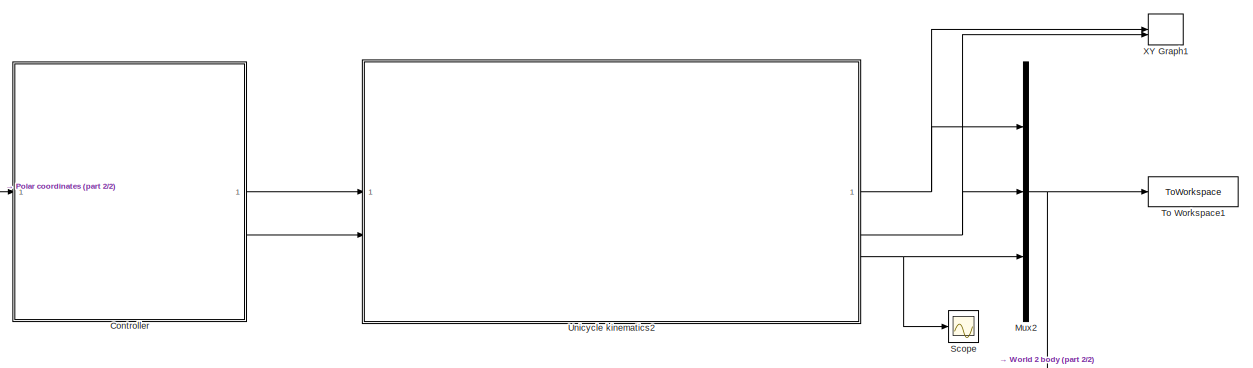
[diagram: root canvas - part 1/2, middle right region]
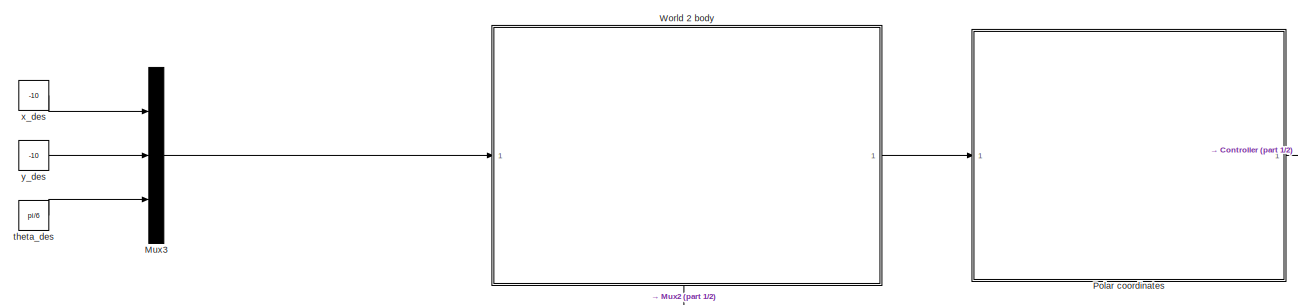
[diagram: root canvas - part 2/2, middle left region]
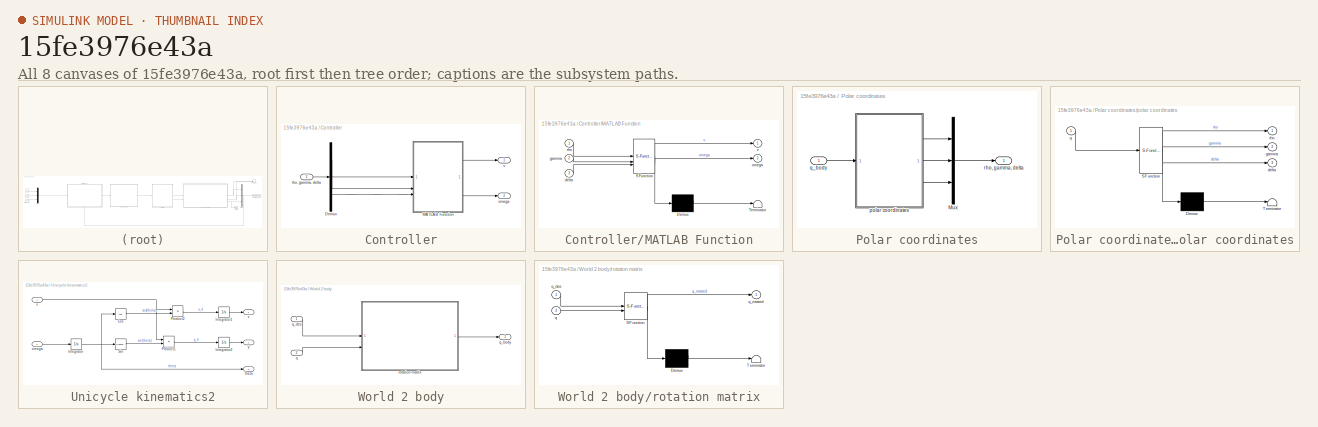
[diagram: thumbnail index - all 8 canvases of the model, root first then tree order]
MODEL slx_15fe3976e43a
KIND model
CONFIG AbsTol = auto
CONFIG EnableMultiTasking = off
CONFIG FixedStep = 1e-3
CONFIG MaxStep = auto
CONFIG MinStep = auto
CONFIG RelTol = 1e-3
CONFIG SampleTimeConstraint = Unconstrained
CONFIG SolverName = ode5
CONFIG StartTime = 0.0
CONFIG StopTime = 15
BLOCK [SubSystem] Controller
BLOCK [Demux] Controller/Demux
  Outputs = 3
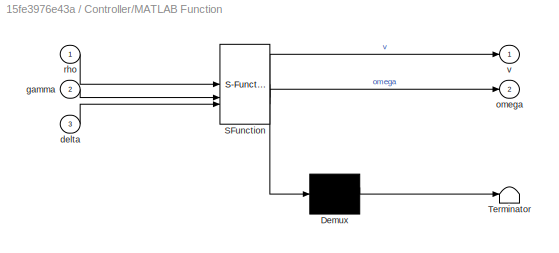
BLOCK [SubSystem] Controller/MATLAB Function
  ErrorFcn = Stateflow.Translate.translate
  PermitHierarchicalResolution = ExplicitOnly
  SFBlockType = MATLAB Function
  TreatAsAtomicUnit = on
BLOCK [Demux] Controller/MATLAB Function/ Demux 
  Outputs = 1
BLOCK [S-Function] Controller/MATLAB Function/ SFunction 
  EnableBusSupport = off
  FunctionName = sf_sfun
  PortCounts = [3 3]
  SFcnIsStateOwnerBlock = off
  SFunctionDeploymentMode = off
  Tag = Stateflow S-Function 3
BLOCK [Terminator] Controller/MATLAB Function/ Terminator 
BLOCK [Inport] Controller/MATLAB Function/delta
  Port = 3
BLOCK [Inport] Controller/MATLAB Function/gamma
  Port = 2
BLOCK [Outport] Controller/MATLAB Function/omega
  Port = 2
BLOCK [Inport] Controller/MATLAB Function/rho
BLOCK [Outport] Controller/MATLAB Function/v
BLOCK [Outport] Controller/omega
  Port = 2
BLOCK [Inport] Controller/rho, gamma, delta
BLOCK [Outport] Controller/v
BLOCK [Mux] Mux2
  DisplayOption = bar
  Inputs = 3
BLOCK [Mux] Mux3
  DisplayOption = bar
  Inputs = 3
BLOCK [SubSystem] Polar coordinates
BLOCK [Mux] Polar coordinates/Mux
  DisplayOption = bar
  Inputs = 3
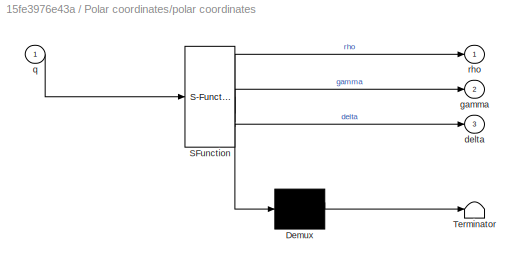
BLOCK [SubSystem] Polar coordinates/polar coordinates
  ErrorFcn = Stateflow.Translate.translate
  PermitHierarchicalResolution = ExplicitOnly
  SFBlockType = MATLAB Function
  TreatAsAtomicUnit = on
BLOCK [Demux] Polar coordinates/polar coordinates/ Demux 
  Outputs = 1
BLOCK [S-Function] Polar coordinates/polar coordinates/ SFunction 
  EnableBusSupport = off
  FunctionName = sf_sfun
  PortCounts = [1 4]
  SFcnIsStateOwnerBlock = off
  SFunctionDeploymentMode = off
  Tag = Stateflow S-Function 2
BLOCK [Terminator] Polar coordinates/polar coordinates/ Terminator 
BLOCK [Outport] Polar coordinates/polar coordinates/delta
  Port = 3
BLOCK [Outport] Polar coordinates/polar coordinates/gamma
  Port = 2
BLOCK [Inport] Polar coordinates/polar coordinates/q
BLOCK [Outport] Polar coordinates/polar coordinates/rho
BLOCK [Inport] Polar coordinates/q_body
BLOCK [Outport] Polar coordinates/rho, gamma, delta
BLOCK [Scope] Scope
  ActiveDisplayYMaximum = 1.2956769953230405
  ActiveDisplayYMinimum = -3.6435767001594175
  Floating = off
  GraphicalSettings = {"Style":{"BackgroundColor":[0.12941176470588237,0.12941176470588237,0.12941176470588237],"AxesColor":[0.07058823529411765,0.07058823529411765,0.07058823529411765],"LabelsColor":[0.8509803921568627,0.8509803921568627,0.8509803921568627],"PreserveColors":false,"Visible":[true],"LineStyle":["-"],"LineWidth":[1.5],"BarWidth":[0.9],"LineColor":["auto"],"LineFaceAlpha":[1],"LineEdgeAlpha":[1],"Marker":...<+2037ch>
  MultipleDisplayCache = [{"MaxYLimMag":3.6435767001594175,"MaxYLimReal":1.2956769953230405,"MinYLimMag":0,"MinYLimReal":-3.6435767001594175,"PlotAsMagnitudePhase":false,"ShowGrid":true,"ShowLegend":false,"Title":"%<SignalLabel>","YLabel":""}]
  NumInputPorts = 1
  ScopeFrameLocation = window
  WasSavedAsWebScope = on
  WindowPosition = [1.000000,41.000000,2560.000000,1377.000000,]
BLOCK [ToWorkspace] To Workspace1
  FixptAsFi = on
  MaxDataPoints = inf
  SampleTime = -1
  SaveFormat = Timeseries
  VariableName = sim_pose1
BLOCK [SubSystem] Unicycle kinematics2
BLOCK [Trigonometry] Unicycle kinematics2/Cos
  Operator = cos
BLOCK [Integrator] Unicycle kinematics2/Integrator
BLOCK [Integrator] Unicycle kinematics2/Integrator1
BLOCK [Integrator] Unicycle kinematics2/Integrator2
BLOCK [Product] Unicycle kinematics2/Product1
BLOCK [Product] Unicycle kinematics2/Product2
BLOCK [Trigonometry] Unicycle kinematics2/Sin
BLOCK [Inport] Unicycle kinematics2/omega
  Port = 2
BLOCK [Outport] Unicycle kinematics2/theta
  Port = 3
BLOCK [Inport] Unicycle kinematics2/v
BLOCK [Outport] Unicycle kinematics2/x
BLOCK [Outport] Unicycle kinematics2/y
  Port = 2
BLOCK [SubSystem] World 2 body
  PortSchema = {"entries":[{"content":{"sides":[{"content":{"connectorIds":["In1"]},"type":"ConnectorPlacement.EquallySpacedRectSide","uuid":"d6332ee4-6e37-4568-865c-a04eee2f5a67"},{"content":{"connectorIds":["Out1"],"side":"RIGHT"},"type":"ConnectorPlacement.EquallySpacedRectSide","uuid":"8e88a442-f659-4873-b48a-1ad3acef8f2e"},{"content":{"side":"TOP"},"type":"ConnectorPlacement.EquallySpacedRectSide","uuid":"5...<+371ch>
BLOCK [Inport] World 2 body/q
  Port = 2
BLOCK [Outport] World 2 body/q_body
BLOCK [Inport] World 2 body/q_des
BLOCK [SubSystem] World 2 body/rotation matrix
  ErrorFcn = Stateflow.Translate.translate
  PermitHierarchicalResolution = ExplicitOnly
  SFBlockType = MATLAB Function
  TreatAsAtomicUnit = on
BLOCK [Demux] World 2 body/rotation matrix/ Demux 
  Outputs = 1
BLOCK [S-Function] World 2 body/rotation matrix/ SFunction 
  EnableBusSupport = off
  FunctionName = sf_sfun
  PortCounts = [2 2]
  SFcnIsStateOwnerBlock = off
  SFunctionDeploymentMode = off
  Tag = Stateflow S-Function 1
BLOCK [Terminator] World 2 body/rotation matrix/ Terminator 
BLOCK [Inport] World 2 body/rotation matrix/q
  Port = 2
BLOCK [Inport] World 2 body/rotation matrix/q_des
BLOCK [Outport] World 2 body/rotation matrix/q_rotated
BLOCK [Record] XY Graph1
  CompatibilityTag = XY
  FileSettingsInternal = {"entries":[{"content":{"excelSettings":{"content":{},"type":"Streamout.ExcelSettings"},"parquetSettings":{"content":{},"type":"Streamout.ParquetSettings"}},"type":"Streamout.FileSettingStorage","uuid":""}],"packageUris":["http:\/\/schema.mathworks.com\/mf0\/streamout_blocks\/R2020a"],"version":"1.0"}
  FrameSettings = [0, 0]
  Layout = [1 1]
  NumPorts = 2.0
  SignalsInternal = {"entries":[{"content":{"signals":[{"content":{"blockPath":[],"dimensions":[1],"domain":"","lineColor":"#a2142f","plots":[ 1 ],"port":1,"sid":[""],"signalID":1,"signalName":"Unicycle kinematics2:1"},"type":"RecordBlkView.Signal","uuid":""},{"content":{"blockPath":[],"dimensions":[1],"domain":"","lineColor":"#139fff","plots":[ 1 ],"port":2,"sid":[""],"signalID":2,"signalName":"Unicycle kinematics2:...<+190ch>
  VisualizationBindings = {"xyplotplugin":{"info":[{"series":[{"bindingParametersList":[{"parameter":"X-Axis","signalID":1,"signalName":"Unicycle kinematics2:1"},{"parameter":"Y-Axis","signalID":2,"signalName":"Unicycle kinematics2:2"}],"seriesID":0}],"subplotID":1}]}}
BLOCK [Constant] theta_des
  Value = pi/6
BLOCK [Constant] x_des
  Value = -10
BLOCK [Constant] y_des
  Value = -10
LINE Controller/Demux:1 -> Controller/MATLAB Function:1
LINE Controller/Demux:2 -> Controller/MATLAB Function:2
LINE Controller/Demux:3 -> Controller/MATLAB Function:3
LINE Controller/MATLAB Function:1 -> Controller/v:1
LINE Controller/MATLAB Function:2 -> Controller/omega:1
LINE Controller/rho, gamma, delta:1 -> Controller/Demux:1
LINE Controller:1 -> Unicycle kinematics2:1
LINE Controller:2 -> Unicycle kinematics2:2
NET Mux2:1 -> To Workspace1:1, World 2 body:2
LINE Mux3:1 -> World 2 body:1
LINE Polar coordinates/Mux:1 -> Polar coordinates/rho, gamma, delta:1
LINE Polar coordinates/polar coordinates:1 -> Polar coordinates/Mux:1
LINE Polar coordinates/polar coordinates:2 -> Polar coordinates/Mux:2
LINE Polar coordinates/polar coordinates:3 -> Polar coordinates/Mux:3
LINE Polar coordinates/q_body:1 -> Polar coordinates/polar coordinates:1
LINE Polar coordinates:1 -> Controller:1
LINE Unicycle kinematics2/Cos:1 -> Unicycle kinematics2/Product2:2
LINE Unicycle kinematics2/Integrator1:1 -> Unicycle kinematics2/x:1
LINE Unicycle kinematics2/Integrator2:1 -> Unicycle kinematics2/y:1
NET Unicycle kinematics2/Integrator:1 -> Unicycle kinematics2/Cos:1, Unicycle kinematics2/Sin:1, Unicycle kinematics2/theta:1
LINE Unicycle kinematics2/Product1:1 -> Unicycle kinematics2/Integrator2:1
LINE Unicycle kinematics2/Product2:1 -> Unicycle kinematics2/Integrator1:1
LINE Unicycle kinematics2/Sin:1 -> Unicycle kinematics2/Product1:2
LINE Unicycle kinematics2/omega:1 -> Unicycle kinematics2/Integrator:1
NET Unicycle kinematics2/v:1 -> Unicycle kinematics2/Product1:1, Unicycle kinematics2/Product2:1
NET Unicycle kinematics2:1 -> Mux2:1, XY Graph1:1
NET Unicycle kinematics2:2 -> Mux2:2, XY Graph1:2
NET Unicycle kinematics2:3 -> Mux2:3, Scope:1
LINE World 2 body/q:1 -> World 2 body/rotation matrix:2
LINE World 2 body/q_des:1 -> World 2 body/rotation matrix:1
LINE World 2 body/rotation matrix:1 -> World 2 body/q_body:1
LINE World 2 body:1 -> Polar coordinates:1
LINE theta_des:1 -> Mux3:3
LINE x_des:1 -> Mux3:1
LINE y_des:1 -> Mux3:2
note: NET lines group one-source signal fan-out (src -> all destinations, sorted); 1:1 wires keep LINE
CHART World 2 body/rotation matrix states=1 transitions=1
  STATE_LABEL 'eML_blk_kernel()'
  STATE_LABEL 'SCRIPT:\nfunction q_rotated  = fcn(q_des, q)\n\ntheta_des = q_des(3);\n\n% rotation matrix\nR = [cos(theta_des), sin(theta_des), 0;\n    -sin(theta_des), cos(theta_des), 0; \n    0,              0,              1];\n\n% rotate\ndelta_q = q - q_des;\nq_rotated = R*delta_q;\n'
CHART Polar coordinates/polar coordinates states=1 transitions=1
  STATE_LABEL 'eML_blk_kernel()'
  STATE_LABEL 'SCRIPT:\nfunction [rho, gamma, delta] = fcn(q)\n\n%auxiliary\ndx = q(1);\ndy = q(2);\ndtheta = q(3);\n\n% trasformation in polar coordinates\nrho = sqrt(dx^2+dy^2);\ngamma = atan2(-dy, -dx) - dtheta;\ndelta = atan2(-dy, -dx);\n\n% !!!!!!!!!!!!!!!!!!!!!!!!Normalize angles to [-pi, pi]\ngamma = atan2(sin(gamma), cos(gamma));\ndelta = atan2(sin(delta), cos(delta));\n\n'
CHART Controller/MATLAB Function states=1 transitions=1
  STATE_LABEL 'eML_blk_kernel()'
  STATE_LABEL 'SCRIPT:\nfunction [v , omega] = fcn(rho, gamma, delta)\n\n% adjust gains\nk1 = 2;\nk2 = 3;\nk3 = 5;\n\n\n% controller\n\nv = k1*rho*cos(gamma);\n\nif (abs(sin(gamma)/gamma) > 0.001)\n    temp = sin(gamma)/gamma;\nelse\n    temp = 1;\nend\n\nomega = k2*gamma + (k1*temp*cos(gamma))*(gamma+k3*delta);\n\n\n\n'
CHART  states=0 transitions=0
CHART  states=0 transitions=0
CHART  states=0 transitions=0
